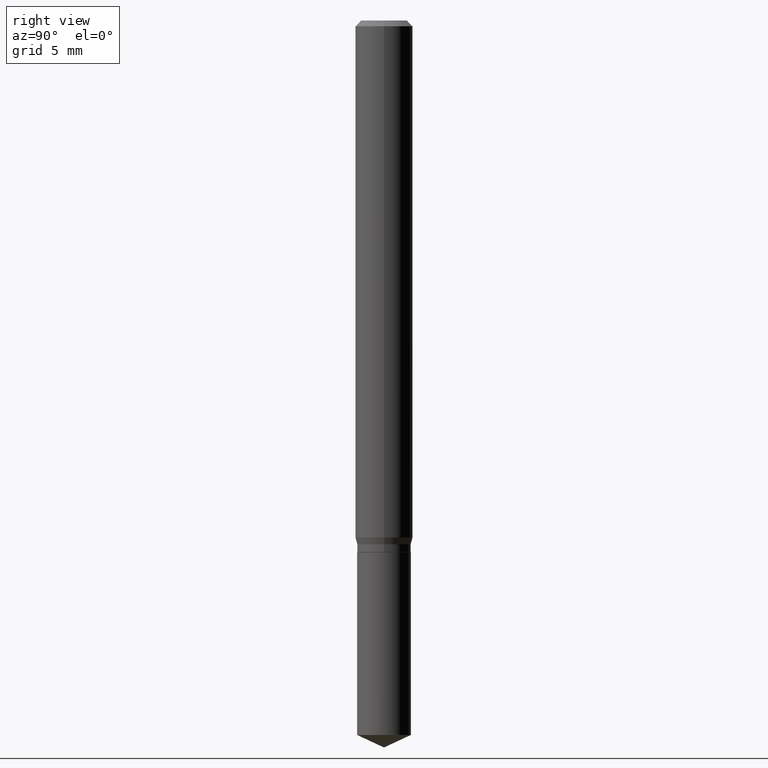
[diagram: clean part render]
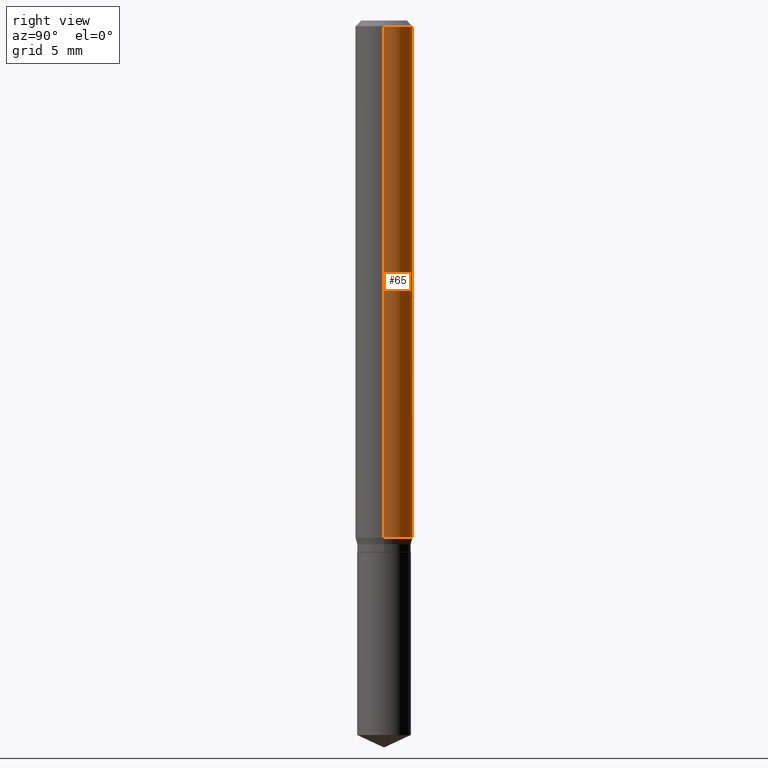
[diagram: same view with one face highlighted and labeled with its STEP entity id]
A machine part, right view. The second image highlights one B-rep face of the part: STEP entity #65.
In plain terms, the highlighted cylindrical surface (edge-blend (fillet) strip) has radius 1.4999 mm, axis along (-0, 0, 1).
Its self-contained STEP definition (entity closure, byte-faithful):
#17 = ORIENTED_EDGE ( 'NONE', *, *, #180, .F. ) ;
#19 = CARTESIAN_POINT ( 'NONE',  ( 0.05905000000000013016, -4.126947734692995206E-15, -1.063904809471616364 ) ) ;
#24 = FACE_OUTER_BOUND ( 'NONE', #456, .T. ) ;
#30 = LINE ( 'NONE', #393, #42 ) ;
#33 = DIRECTION ( 'NONE',  ( -2.445468806185136597E-29, 3.491481338843145583E-15, 1.000000000000000000 ) ) ;
#42 = VECTOR ( 'NONE', #333, 39.37007874015748143 ) ;
#50 = ORIENTED_EDGE ( 'NONE', *, *, #193, .T. ) ;
#64 = DIRECTION ( 'NONE',  ( -2.445468806185136877E-29, 3.491481338843145188E-15, 1.000000000000000000 ) ) ;
#65 = ADVANCED_FACE ( 'NONE', ( #24 ), #186, .T. ) ;
#73 = ORIENTED_EDGE ( 'NONE', *, *, #479, .F. ) ;
#87 = CARTESIAN_POINT ( 'NONE',  ( -0.05905000000000013016, -3.295028303109280398E-15, -1.063904809471616364 ) ) ;
#96 = EDGE_CURVE ( 'NONE', #440, #262, #461, .T. ) ;
#110 = VERTEX_POINT ( 'NONE', #169 ) ;
#114 = AXIS2_PLACEMENT_3D ( 'NONE', #329, #33, #190 ) ;
#124 = DIRECTION ( 'NONE',  ( -2.445468806185136597E-29, 3.491481338843145583E-15, 1.000000000000000000 ) ) ;
#143 = ORIENTED_EDGE ( 'NONE', *, *, #96, .T. ) ;
#169 = CARTESIAN_POINT ( 'NONE',  ( -0.05904999999999999832, -1.458343606127338923E-15, -0.01181000000000007218 ) ) ;
#180 = EDGE_CURVE ( 'NONE', #458, #110, #232, .T. ) ;
#186 = CYLINDRICAL_SURFACE ( 'NONE', #202, 0.05905000000000006771 ) ;
#190 = DIRECTION ( 'NONE',  ( 1.000000000000000000, -6.982962677686266711E-15, 0.000000000000000000 ) ) ;
#193 = EDGE_CURVE ( 'NONE', #262, #110, #291, .T. ) ;
#202 = AXIS2_PLACEMENT_3D ( 'NONE', #270, #235, #273 ) ;
#232 = CIRCLE ( 'NONE', #114, 0.05904999999999999832 ) ;
#235 = DIRECTION ( 'NONE',  ( -2.445468806185136597E-29, 3.491481338843145583E-15, 1.000000000000000000 ) ) ;
#252 = CARTESIAN_POINT ( 'NONE',  ( -0.05905000000000006771, 4.195754854663396409E-16, -2.904631170795525045E-30 ) ) ;
#262 = VERTEX_POINT ( 'NONE', #87 ) ;
#270 = CARTESIAN_POINT ( 'NONE',  ( 0.000000000000000000, 0.000000000000000000, 0.000000000000000000 ) ) ;
#272 = CARTESIAN_POINT ( 'NONE',  ( 2.601746024313178351E-29, -3.714603788575621075E-15, -1.063904809471616364 ) ) ;
#273 = DIRECTION ( 'NONE',  ( 1.000000000000000000, -6.982962677686266711E-15, 4.876176775795936353E-29 ) ) ;
#291 = LINE ( 'NONE', #252, #415 ) ;
#329 = CARTESIAN_POINT ( 'NONE',  ( 2.888098660104664204E-31, -4.123439461173780263E-17, -0.01181000000000007218 ) ) ;
#333 = DIRECTION ( 'NONE',  ( -2.445468806185136877E-29, 3.491481338843145188E-15, 1.000000000000000000 ) ) ;
#393 = CARTESIAN_POINT ( 'NONE',  ( 0.05905000000000006771, -4.123439461173745257E-16, 2.879382386107503723E-30 ) ) ;
#412 = DIRECTION ( 'NONE',  ( 1.000000000000000000, -6.982962677686265133E-15, 0.000000000000000000 ) ) ;
#415 = VECTOR ( 'NONE', #64, 39.37007874015748143 ) ;
#440 = VERTEX_POINT ( 'NONE', #19 ) ;
#454 = AXIS2_PLACEMENT_3D ( 'NONE', #272, #124, #412 ) ;
#456 = EDGE_LOOP ( 'NONE', ( #143, #50, #17, #73 ) ) ;
#458 = VERTEX_POINT ( 'NONE', #473 ) ;
#461 = CIRCLE ( 'NONE', #454, 0.05905000000000013016 ) ;
#473 = CARTESIAN_POINT ( 'NONE',  ( 0.05904999999999999832, -4.535783407291118600E-16, -0.01181000000000007218 ) ) ;
#479 = EDGE_CURVE ( 'NONE', #440, #458, #30, .T. ) ;